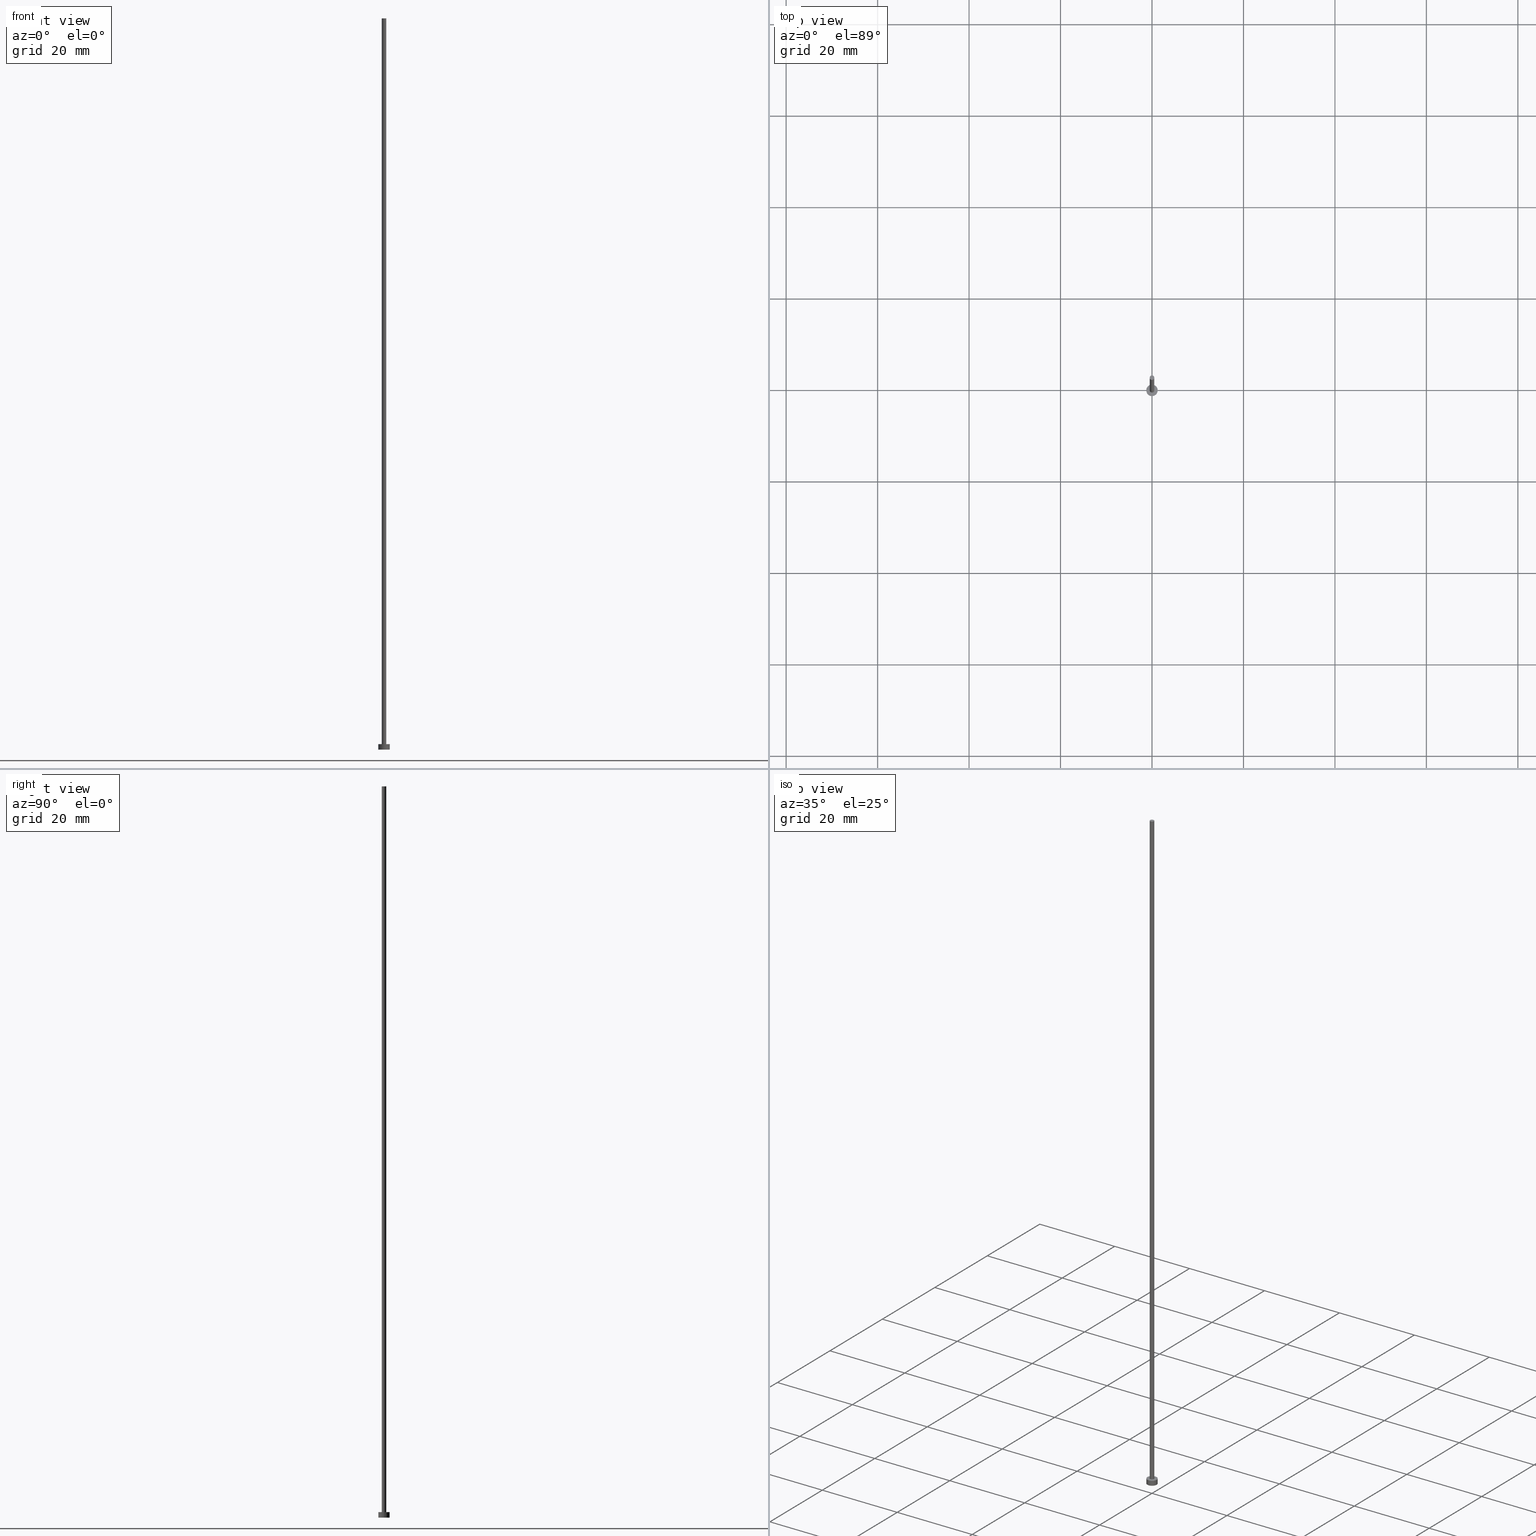
[diagram: canonical four-view strip — front | top / right | iso, engineering-drawing reading convention]
A machine part, canonical four-view strip (front | top / right | iso — engineering-drawing reading convention). The complete STEP part file that produces these views, byte-faithful:
ISO-10303-21;
HEADER;
FILE_DESCRIPTION (( 'STEP AP203' ),
    '1' );
FILE_NAME ('c30b.STEP',
    '2023-03-03T10:13:51',
    ( '' ),
    ( '' ),
    'SwSTEP 2.0',
    'SolidWorks 2019',
    '' );
FILE_SCHEMA (( 'CONFIG_CONTROL_DESIGN' ));
ENDSEC;

DATA;
#1 = CC_DESIGN_APPROVAL ( #192, ( #20 ) ) ;
#2 = LINE ( 'NONE', #228, #184 ) ;
#3 = ORIENTED_EDGE ( 'NONE', *, *, #196, .T. ) ;
#4 = APPLICATION_CONTEXT ( 'configuration controlled 3d designs of mechanical parts and assemblies' ) ;
#5 = APPROVAL_PERSON_ORGANIZATION ( #40, #192, #206 ) ;
#6 = DIRECTION ( 'NONE',  ( 0.000000000000000000, 0.000000000000000000, 1.000000000000000000 ) ) ;
#7 = DIRECTION ( 'NONE',  ( 0.000000000000000000, 0.000000000000000000, 1.000000000000000000 ) ) ;
#8 = PRODUCT_DEFINITION_SHAPE ( 'NONE', 'NONE',  #178 ) ;
#9 = AXIS2_PLACEMENT_3D ( 'NONE', #198, #81, #204 ) ;
#10 = PERSON_AND_ORGANIZATION ( #193, #109 ) ;
#11 = CARTESIAN_POINT ( 'NONE',  ( -1.250000000000000000, 0.000000000000000000, 0.000000000000000000 ) ) ;
#12 = ORIENTED_EDGE ( 'NONE', *, *, #122, .T. ) ;
#13 = CC_DESIGN_APPROVAL ( #115, ( #178 ) ) ;
#14 = LINE ( 'NONE', #147, #68 ) ;
#15 = VERTEX_POINT ( 'NONE', #11 ) ;
#16 = CC_DESIGN_PERSON_AND_ORGANIZATION_ASSIGNMENT ( #231, #214, ( #150 ) ) ;
#17 = PERSON_AND_ORGANIZATION ( #193, #109 ) ;
#18 = FACE_BOUND ( 'NONE', #202, .T. ) ;
#19 = APPROVAL_DATE_TIME ( #38, #192 ) ;
#20 = SECURITY_CLASSIFICATION ( '', '', #64 ) ;
#21 = PERSON_AND_ORGANIZATION_ROLE ( 'classification_officer' ) ;
#22 = APPROVAL_STATUS ( 'not_yet_approved' ) ;
#23 = LINE ( 'NONE', #189, #110 ) ;
#24 = DIRECTION ( 'NONE',  ( 1.000000000000000000, 0.000000000000000000, 0.000000000000000000 ) ) ;
#25 = DIRECTION ( 'NONE',  ( 1.000000000000000000, 0.000000000000000000, 0.000000000000000000 ) ) ;
#26 = EDGE_LOOP ( 'NONE', ( #75, #146 ) ) ;
#27 = CARTESIAN_POINT ( 'NONE',  ( 0.000000000000000000, 0.000000000000000000, 0.000000000000000000 ) ) ;
#28 = CARTESIAN_POINT ( 'NONE',  ( 0.000000000000000000, 0.000000000000000000, 159.8999999999999773 ) ) ;
#29 = DIRECTION ( 'NONE',  ( -1.000000000000000000, 0.000000000000000000, 0.000000000000000000 ) ) ;
#30 = AXIS2_PLACEMENT_3D ( 'NONE', #91, #237, #133 ) ;
#31 = EDGE_LOOP ( 'NONE', ( #139, #12 ) ) ;
#32 = FACE_OUTER_BOUND ( 'NONE', #177, .T. ) ;
#33 = CC_DESIGN_SECURITY_CLASSIFICATION ( #20, ( #150 ) ) ;
#34 = SHAPE_DEFINITION_REPRESENTATION ( #8, #95 ) ;
#35 = FACE_OUTER_BOUND ( 'NONE', #248, .T. ) ;
#36 = DIRECTION ( 'NONE',  ( 0.000000000000000000, 0.000000000000000000, 1.000000000000000000 ) ) ;
#37 = ORIENTED_EDGE ( 'NONE', *, *, #57, .T. ) ;
#38 = DATE_AND_TIME ( #90, #140 ) ;
#39 = ORIENTED_EDGE ( 'NONE', *, *, #57, .F. ) ;
#40 = PERSON_AND_ORGANIZATION ( #193, #109 ) ;
#41 = ORIENTED_EDGE ( 'NONE', *, *, #132, .F. ) ;
#42 = ADVANCED_FACE ( 'NONE', ( #222 ), #250, .T. ) ;
#43 = APPROVAL_STATUS ( 'not_yet_approved' ) ;
#44 = CARTESIAN_POINT ( 'NONE',  ( 0.000000000000000000, 0.000000000000000000, 1.199999999999999956 ) ) ;
#45 = ORIENTED_EDGE ( 'NONE', *, *, #132, .T. ) ;
#46 = CARTESIAN_POINT ( 'NONE',  ( 0.000000000000000000, 0.000000000000000000, 1.199999999999999956 ) ) ;
#47 = PERSON_AND_ORGANIZATION_ROLE ( 'design_owner' ) ;
#48 = CARTESIAN_POINT ( 'NONE',  ( 1.250000000000000000, 1.530808498934191571E-16, 0.000000000000000000 ) ) ;
#49 = PERSON_AND_ORGANIZATION_ROLE ( 'creator' ) ;
#50 = EDGE_LOOP ( 'NONE', ( #209, #221, #251, #41 ) ) ;
#51 = CARTESIAN_POINT ( 'NONE',  ( -1.250000000000000000, 0.000000000000000000, 1.199999999999999956 ) ) ;
#52 = EDGE_CURVE ( 'NONE', #165, #244, #180, .T. ) ;
#53 = AXIS2_PLACEMENT_3D ( 'NONE', #54, #128, #123 ) ;
#54 = CARTESIAN_POINT ( 'NONE',  ( 0.000000000000000000, 0.000000000000000000, 1.199999999999999956 ) ) ;
#55 = VERTEX_POINT ( 'NONE', #84 ) ;
#56 = AXIS2_PLACEMENT_3D ( 'NONE', #129, #200, #79 ) ;
#57 = EDGE_CURVE ( 'NONE', #244, #15, #14, .T. ) ;
#58 = ORIENTED_EDGE ( 'NONE', *, *, #152, .F. ) ;
#59 = PERSON_AND_ORGANIZATION ( #193, #109 ) ;
#60 = CC_DESIGN_PERSON_AND_ORGANIZATION_ASSIGNMENT ( #10, #49, ( #178 ) ) ;
#61 = DIRECTION ( 'NONE',  ( 1.000000000000000000, 0.000000000000000000, 0.000000000000000000 ) ) ;
#62 =( NAMED_UNIT ( * ) SI_UNIT ( $, .STERADIAN. ) SOLID_ANGLE_UNIT ( ) );
#63 = CIRCLE ( 'NONE', #92, 1.250000000000000000 ) ;
#64 = SECURITY_CLASSIFICATION_LEVEL ( 'unclassified' ) ;
#65 = ORIENTED_EDGE ( 'NONE', *, *, #218, .T. ) ;
#66 = EDGE_CURVE ( 'NONE', #55, #161, #2, .T. ) ;
#67 = DIRECTION ( 'NONE',  ( 1.000000000000000000, 0.000000000000000000, 0.000000000000000000 ) ) ;
#68 = VECTOR ( 'NONE', #78, 1000.000000000000000 ) ;
#69 = AXIS2_PLACEMENT_3D ( 'NONE', #27, #168, #67 ) ;
#70 = COORDINATED_UNIVERSAL_TIME_OFFSET ( 1, 0, .AHEAD. ) ;
#71 = CC_DESIGN_DATE_AND_TIME_ASSIGNMENT ( #135, #220, ( #20 ) ) ;
#72 = LOCAL_TIME ( 11, 13, 51.00000000000000000, #155 ) ;
#73 = AXIS2_PLACEMENT_3D ( 'NONE', #164, #6, #61 ) ;
#74 = PERSON_AND_ORGANIZATION ( #193, #109 ) ;
#75 = ORIENTED_EDGE ( 'NONE', *, *, #172, .F. ) ;
#76 = PLANE ( 'NONE',  #53 ) ;
#77 = CIRCLE ( 'NONE', #30, 1.250000000000000000 ) ;
#78 = DIRECTION ( 'NONE',  ( -0.000000000000000000, -0.000000000000000000, -1.000000000000000000 ) ) ;
#79 = DIRECTION ( 'NONE',  ( 1.000000000000000000, 0.000000000000000000, -0.000000000000000000 ) ) ;
#80 = VECTOR ( 'NONE', #227, 1000.000000000000000 ) ;
#81 = DIRECTION ( 'NONE',  ( -0.000000000000000000, -0.000000000000000000, -1.000000000000000000 ) ) ;
#82 = DIRECTION ( 'NONE',  ( 0.000000000000000000, 0.000000000000000000, 1.000000000000000000 ) ) ;
#83 = CC_DESIGN_PERSON_AND_ORGANIZATION_ASSIGNMENT ( #17, #153, ( #150 ) ) ;
#84 = CARTESIAN_POINT ( 'NONE',  ( 0.5000000000000000000, 6.123233995736766036E-17, 159.8999999999999773 ) ) ;
#85 = CYLINDRICAL_SURFACE ( 'NONE', #246, 1.250000000000000000 ) ;
#86 = ADVANCED_FACE ( 'NONE', ( #18, #254 ), #76, .T. ) ;
#87 = CC_DESIGN_APPROVAL ( #112, ( #150 ) ) ;
#88 = CALENDAR_DATE ( 2023, 3, 3 ) ;
#89 = PRODUCT ( 'c30b', 'c30b', '', ( #99 ) ) ;
#90 = CALENDAR_DATE ( 2023, 3, 3 ) ;
#91 = CARTESIAN_POINT ( 'NONE',  ( 0.000000000000000000, 0.000000000000000000, 0.000000000000000000 ) ) ;
#92 = AXIS2_PLACEMENT_3D ( 'NONE', #46, #249, #176 ) ;
#93 = ADVANCED_FACE ( 'NONE', ( #32 ), #131, .T. ) ;
#94 = DIRECTION ( 'NONE',  ( 1.000000000000000000, 0.000000000000000000, 0.000000000000000000 ) ) ;
#95 = ADVANCED_BREP_SHAPE_REPRESENTATION ( 'c30b', ( #125, #199 ), #216 ) ;
#96 = APPROVAL_PERSON_ORGANIZATION ( #74, #115, #245 ) ;
#97 = CIRCLE ( 'NONE', #252, 0.5000000000000000000 ) ;
#98 = CC_DESIGN_PERSON_AND_ORGANIZATION_ASSIGNMENT ( #114, #47, ( #89 ) ) ;
#99 = MECHANICAL_CONTEXT ( 'NONE', #233, 'mechanical' ) ;
#100 = COORDINATED_UNIVERSAL_TIME_OFFSET ( 1, 0, .AHEAD. ) ;
#101 = CARTESIAN_POINT ( 'NONE',  ( 0.000000000000000000, 0.000000000000000000, 1.199999999999999956 ) ) ;
#102 = FACE_OUTER_BOUND ( 'NONE', #229, .T. ) ;
#103 = EDGE_CURVE ( 'NONE', #219, #15, #77, .T. ) ;
#104 = ORIENTED_EDGE ( 'NONE', *, *, #225, .F. ) ;
#105 = DIRECTION ( 'NONE',  ( -1.000000000000000000, 0.000000000000000000, 0.000000000000000000 ) ) ;
#106 = CLOSED_SHELL ( 'NONE', ( #42, #183, #212, #86, #157, #93, #243 ) ) ;
#107 = DATE_TIME_ROLE ( 'creation_date' ) ;
#108 = DIRECTION ( 'NONE',  ( -0.000000000000000000, -0.000000000000000000, -1.000000000000000000 ) ) ;
#109 = ORGANIZATION ( 'NEUR�EN�', 'NEUR�EN�', '' ) ;
#110 = VECTOR ( 'NONE', #116, 1000.000000000000000 ) ;
#111 = CARTESIAN_POINT ( 'NONE',  ( 0.000000000000000000, 0.000000000000000000, 1.199999999999999956 ) ) ;
#112 = APPROVAL ( #151, 'NEUR�EN�' ) ;
#113 = PLANE ( 'NONE',  #217 ) ;
#114 = PERSON_AND_ORGANIZATION ( #193, #109 ) ;
#115 = APPROVAL ( #43, 'NEUR�EN�' ) ;
#116 = DIRECTION ( 'NONE',  ( -0.000000000000000000, -0.000000000000000000, -1.000000000000000000 ) ) ;
#117 = CALENDAR_DATE ( 2023, 3, 3 ) ;
#118 = DIRECTION ( 'NONE',  ( -0.000000000000000000, -0.000000000000000000, -1.000000000000000000 ) ) ;
#119 = AXIS2_PLACEMENT_3D ( 'NONE', #111, #167, #24 ) ;
#120 = DIRECTION ( 'NONE',  ( -1.000000000000000000, 0.000000000000000000, 0.000000000000000000 ) ) ;
#121 = ORIENTED_EDGE ( 'NONE', *, *, #172, .T. ) ;
#122 = EDGE_CURVE ( 'NONE', #55, #239, #240, .T. ) ;
#123 = DIRECTION ( 'NONE',  ( 1.000000000000000000, 0.000000000000000000, -0.000000000000000000 ) ) ;
#124 = AXIS2_PLACEMENT_3D ( 'NONE', #28, #226, #120 ) ;
#125 = MANIFOLD_SOLID_BREP ( 'P�idat vysunut�m3', #106 ) ;
#126 = LOCAL_TIME ( 11, 13, 51.00000000000000000, #100 ) ;
#127 = ORIENTED_EDGE ( 'NONE', *, *, #103, .T. ) ;
#128 = DIRECTION ( 'NONE',  ( 0.000000000000000000, 0.000000000000000000, 1.000000000000000000 ) ) ;
#129 = CARTESIAN_POINT ( 'NONE',  ( 0.000000000000000000, 0.000000000000000000, 159.8999999999999773 ) ) ;
#130 = CC_DESIGN_PERSON_AND_ORGANIZATION_ASSIGNMENT ( #59, #21, ( #20 ) ) ;
#131 = CYLINDRICAL_SURFACE ( 'NONE', #9, 0.5000000000000000000 ) ;
#132 = EDGE_CURVE ( 'NONE', #239, #185, #23, .T. ) ;
#133 = DIRECTION ( 'NONE',  ( 1.000000000000000000, 0.000000000000000000, 0.000000000000000000 ) ) ;
#134 = CARTESIAN_POINT ( 'NONE',  ( 0.000000000000000000, 0.000000000000000000, 159.8999999999999773 ) ) ;
#135 = DATE_AND_TIME ( #158, #230 ) ;
#136 = FACE_OUTER_BOUND ( 'NONE', #26, .T. ) ;
#137 = PRODUCT_RELATED_PRODUCT_CATEGORY ( 'detail', '', ( #89 ) ) ;
#138 = APPLICATION_PROTOCOL_DEFINITION ( 'international standard', 'config_control_design', 1994, #233 ) ;
#139 = ORIENTED_EDGE ( 'NONE', *, *, #169, .T. ) ;
#140 = LOCAL_TIME ( 11, 13, 51.00000000000000000, #182 ) ;
#141 = CARTESIAN_POINT ( 'NONE',  ( 1.250000000000000000, 1.530808498934191571E-16, 1.199999999999999956 ) ) ;
#142 = ORIENTED_EDGE ( 'NONE', *, *, #169, .F. ) ;
#143 = DIRECTION ( 'NONE',  ( -0.000000000000000000, -0.000000000000000000, -1.000000000000000000 ) ) ;
#144 = APPROVAL_DATE_TIME ( #186, #115 ) ;
#145 = LINE ( 'NONE', #141, #80 ) ;
#146 = ORIENTED_EDGE ( 'NONE', *, *, #103, .F. ) ;
#147 = CARTESIAN_POINT ( 'NONE',  ( -1.250000000000000000, 0.000000000000000000, 1.199999999999999956 ) ) ;
#148 = DATE_AND_TIME ( #88, #72 ) ;
#149 = CIRCLE ( 'NONE', #119, 0.5000000000000000000 ) ;
#150 = PRODUCT_DEFINITION_FORMATION_WITH_SPECIFIED_SOURCE ( 'LIBOVOLN�', '', #89, .NOT_KNOWN. ) ;
#151 = APPROVAL_STATUS ( 'not_yet_approved' ) ;
#152 = EDGE_CURVE ( 'NONE', #161, #185, #149, .T. ) ;
#153 = PERSON_AND_ORGANIZATION_ROLE ( 'creator' ) ;
#154 = ORIENTED_EDGE ( 'NONE', *, *, #196, .F. ) ;
#155 = COORDINATED_UNIVERSAL_TIME_OFFSET ( 1, 0, .AHEAD. ) ;
#156 = CARTESIAN_POINT ( 'NONE',  ( -0.5000000000000000000, 0.000000000000000000, 159.8999999999999773 ) ) ;
#157 = ADVANCED_FACE ( 'NONE', ( #136 ), #113, .F. ) ;
#158 = CALENDAR_DATE ( 2023, 3, 3 ) ;
#159 = APPROVAL_PERSON_ORGANIZATION ( #211, #112, #195 ) ;
#160 = CARTESIAN_POINT ( 'NONE',  ( 0.000000000000000000, 0.000000000000000000, 0.000000000000000000 ) ) ;
#161 = VERTEX_POINT ( 'NONE', #163 ) ;
#162 =( NAMED_UNIT ( * ) PLANE_ANGLE_UNIT ( ) SI_UNIT ( $, .RADIAN. ) );
#163 = CARTESIAN_POINT ( 'NONE',  ( 0.5000000000000000000, 6.123233995736766036E-17, 1.199999999999999956 ) ) ;
#164 = CARTESIAN_POINT ( 'NONE',  ( 0.000000000000000000, 0.000000000000000000, 159.8999999999999773 ) ) ;
#165 = VERTEX_POINT ( 'NONE', #238 ) ;
#166 = ORIENTED_EDGE ( 'NONE', *, *, #218, .F. ) ;
#167 = DIRECTION ( 'NONE',  ( 0.000000000000000000, 0.000000000000000000, 1.000000000000000000 ) ) ;
#168 = DIRECTION ( 'NONE',  ( 0.000000000000000000, 0.000000000000000000, 1.000000000000000000 ) ) ;
#169 = EDGE_CURVE ( 'NONE', #239, #55, #97, .T. ) ;
#170 = ORIENTED_EDGE ( 'NONE', *, *, #52, .F. ) ;
#171 = APPLICATION_PROTOCOL_DEFINITION ( 'international standard', 'config_control_design', 1994, #4 ) ;
#172 = EDGE_CURVE ( 'NONE', #15, #219, #181, .T. ) ;
#173 = ORIENTED_EDGE ( 'NONE', *, *, #66, .F. ) ;
#174 = DIRECTION ( 'NONE',  ( 1.000000000000000000, 0.000000000000000000, 0.000000000000000000 ) ) ;
#175 = CIRCLE ( 'NONE', #203, 0.5000000000000000000 ) ;
#176 = DIRECTION ( 'NONE',  ( 1.000000000000000000, 0.000000000000000000, 0.000000000000000000 ) ) ;
#177 = EDGE_LOOP ( 'NONE', ( #173, #142, #45, #188 ) ) ;
#178 = PRODUCT_DEFINITION ( 'NEZN�M�', '', #150, #179 ) ;
#179 = DESIGN_CONTEXT ( 'detailed design', #4, 'design' ) ;
#180 = CIRCLE ( 'NONE', #190, 1.250000000000000000 ) ;
#181 = CIRCLE ( 'NONE', #69, 1.250000000000000000 ) ;
#182 = COORDINATED_UNIVERSAL_TIME_OFFSET ( 1, 0, .AHEAD. ) ;
#183 = ADVANCED_FACE ( 'NONE', ( #35 ), #223, .T. ) ;
#184 = VECTOR ( 'NONE', #108, 1000.000000000000000 ) ;
#185 = VERTEX_POINT ( 'NONE', #194 ) ;
#186 = DATE_AND_TIME ( #117, #207 ) ;
#187 = DIRECTION ( 'NONE',  ( 0.000000000000000000, 0.000000000000000000, 1.000000000000000000 ) ) ;
#188 = ORIENTED_EDGE ( 'NONE', *, *, #225, .T. ) ;
#189 = CARTESIAN_POINT ( 'NONE',  ( -0.5000000000000000000, 0.000000000000000000, 159.8999999999999773 ) ) ;
#190 = AXIS2_PLACEMENT_3D ( 'NONE', #210, #187, #174 ) ;
#191 = DATE_AND_TIME ( #224, #126 ) ;
#192 = APPROVAL ( #22, 'NEUR�EN�' ) ;
#193 = PERSON ( 'NEUR�EN�', 'NEUR�EN�', 'NEUR�EN�', ('NEUR�EN�'), ('NEUR�EN�'), ('NEUR�EN�') ) ;
#194 = CARTESIAN_POINT ( 'NONE',  ( -0.5000000000000000000, 0.000000000000000000, 1.199999999999999956 ) ) ;
#195 = APPROVAL_ROLE ( '' ) ;
#196 = EDGE_CURVE ( 'NONE', #244, #165, #63, .T. ) ;
#197 = APPROVAL_DATE_TIME ( #148, #112 ) ;
#198 = CARTESIAN_POINT ( 'NONE',  ( 0.000000000000000000, 0.000000000000000000, 159.8999999999999773 ) ) ;
#199 = AXIS2_PLACEMENT_3D ( 'NONE', #160, #36, #25 ) ;
#200 = DIRECTION ( 'NONE',  ( 0.000000000000000000, 0.000000000000000000, 1.000000000000000000 ) ) ;
#201 = COORDINATED_UNIVERSAL_TIME_OFFSET ( 1, 0, .AHEAD. ) ;
#202 = EDGE_LOOP ( 'NONE', ( #104, #58 ) ) ;
#203 = AXIS2_PLACEMENT_3D ( 'NONE', #101, #82, #232 ) ;
#204 = DIRECTION ( 'NONE',  ( -1.000000000000000000, 0.000000000000000000, 0.000000000000000000 ) ) ;
#205 = CARTESIAN_POINT ( 'NONE',  ( 0.000000000000000000, 0.000000000000000000, 0.000000000000000000 ) ) ;
#206 = APPROVAL_ROLE ( '' ) ;
#207 = LOCAL_TIME ( 11, 13, 51.00000000000000000, #70 ) ;
#208 = DIRECTION ( 'NONE',  ( 0.000000000000000000, 0.000000000000000000, 1.000000000000000000 ) ) ;
#209 = ORIENTED_EDGE ( 'NONE', *, *, #122, .F. ) ;
#210 = CARTESIAN_POINT ( 'NONE',  ( 0.000000000000000000, 0.000000000000000000, 1.199999999999999956 ) ) ;
#211 = PERSON_AND_ORGANIZATION ( #193, #109 ) ;
#212 = ADVANCED_FACE ( 'NONE', ( #102 ), #85, .T. ) ;
#213 = AXIS2_PLACEMENT_3D ( 'NONE', #44, #118, #29 ) ;
#214 = PERSON_AND_ORGANIZATION_ROLE ( 'design_supplier' ) ;
#215 = FACE_OUTER_BOUND ( 'NONE', #31, .T. ) ;
#216 =( GEOMETRIC_REPRESENTATION_CONTEXT ( 3 ) GLOBAL_UNCERTAINTY_ASSIGNED_CONTEXT ( ( #241 ) ) GLOBAL_UNIT_ASSIGNED_CONTEXT ( ( #235, #162, #62 ) ) REPRESENTATION_CONTEXT ( 'NONE', 'WORKASPACE' ) );
#217 = AXIS2_PLACEMENT_3D ( 'NONE', #205, #7, #242 ) ;
#218 = EDGE_CURVE ( 'NONE', #165, #219, #145, .T. ) ;
#219 = VERTEX_POINT ( 'NONE', #48 ) ;
#220 = DATE_TIME_ROLE ( 'classification_date' ) ;
#221 = ORIENTED_EDGE ( 'NONE', *, *, #66, .T. ) ;
#222 = FACE_OUTER_BOUND ( 'NONE', #50, .T. ) ;
#223 = CYLINDRICAL_SURFACE ( 'NONE', #213, 1.250000000000000000 ) ;
#224 = CALENDAR_DATE ( 2023, 3, 3 ) ;
#225 = EDGE_CURVE ( 'NONE', #185, #161, #175, .T. ) ;
#226 = DIRECTION ( 'NONE',  ( -0.000000000000000000, -0.000000000000000000, -1.000000000000000000 ) ) ;
#227 = DIRECTION ( 'NONE',  ( -0.000000000000000000, -0.000000000000000000, -1.000000000000000000 ) ) ;
#228 = CARTESIAN_POINT ( 'NONE',  ( 0.5000000000000000000, 6.123233995736766036E-17, 159.8999999999999773 ) ) ;
#229 = EDGE_LOOP ( 'NONE', ( #166, #154, #37, #121 ) ) ;
#230 = LOCAL_TIME ( 11, 13, 51.00000000000000000, #201 ) ;
#231 = PERSON_AND_ORGANIZATION ( #193, #109 ) ;
#232 = DIRECTION ( 'NONE',  ( 1.000000000000000000, 0.000000000000000000, 0.000000000000000000 ) ) ;
#233 = APPLICATION_CONTEXT ( 'configuration controlled 3d designs of mechanical parts and assemblies' ) ;
#234 = CC_DESIGN_DATE_AND_TIME_ASSIGNMENT ( #191, #107, ( #178 ) ) ;
#235 =( LENGTH_UNIT ( ) NAMED_UNIT ( * ) SI_UNIT ( .MILLI., .METRE. ) );
#236 = ORIENTED_EDGE ( 'NONE', *, *, #52, .T. ) ;
#237 = DIRECTION ( 'NONE',  ( 0.000000000000000000, 0.000000000000000000, 1.000000000000000000 ) ) ;
#238 = CARTESIAN_POINT ( 'NONE',  ( 1.250000000000000000, 1.530808498934191571E-16, 1.199999999999999956 ) ) ;
#239 = VERTEX_POINT ( 'NONE', #156 ) ;
#240 = CIRCLE ( 'NONE', #73, 0.5000000000000000000 ) ;
#241 = UNCERTAINTY_MEASURE_WITH_UNIT (LENGTH_MEASURE( 1.000000000000000082E-05 ), #235, 'distance_accuracy_value', 'NONE');
#242 = DIRECTION ( 'NONE',  ( 1.000000000000000000, 0.000000000000000000, -0.000000000000000000 ) ) ;
#243 = ADVANCED_FACE ( 'NONE', ( #215 ), #255, .T. ) ;
#244 = VERTEX_POINT ( 'NONE', #51 ) ;
#245 = APPROVAL_ROLE ( '' ) ;
#246 = AXIS2_PLACEMENT_3D ( 'NONE', #253, #143, #105 ) ;
#247 = EDGE_LOOP ( 'NONE', ( #3, #236 ) ) ;
#248 = EDGE_LOOP ( 'NONE', ( #170, #65, #127, #39 ) ) ;
#249 = DIRECTION ( 'NONE',  ( 0.000000000000000000, 0.000000000000000000, 1.000000000000000000 ) ) ;
#250 = CYLINDRICAL_SURFACE ( 'NONE', #124, 0.5000000000000000000 ) ;
#251 = ORIENTED_EDGE ( 'NONE', *, *, #152, .T. ) ;
#252 = AXIS2_PLACEMENT_3D ( 'NONE', #134, #208, #94 ) ;
#253 = CARTESIAN_POINT ( 'NONE',  ( 0.000000000000000000, 0.000000000000000000, 1.199999999999999956 ) ) ;
#254 = FACE_OUTER_BOUND ( 'NONE', #247, .T. ) ;
#255 = PLANE ( 'NONE',  #56 ) ;
ENDSEC;
END-ISO-10303-21;
